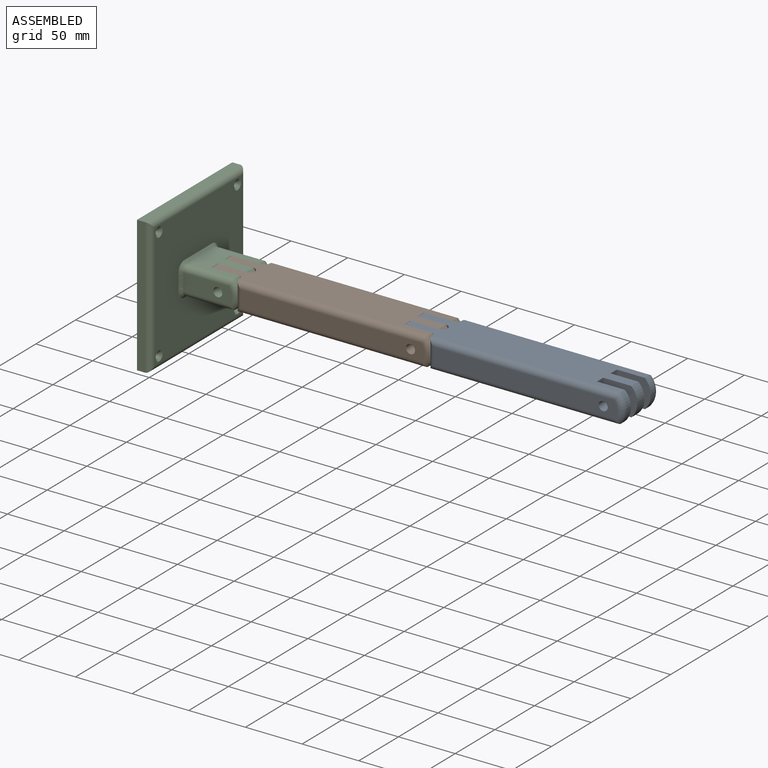
[diagram: assembled view]
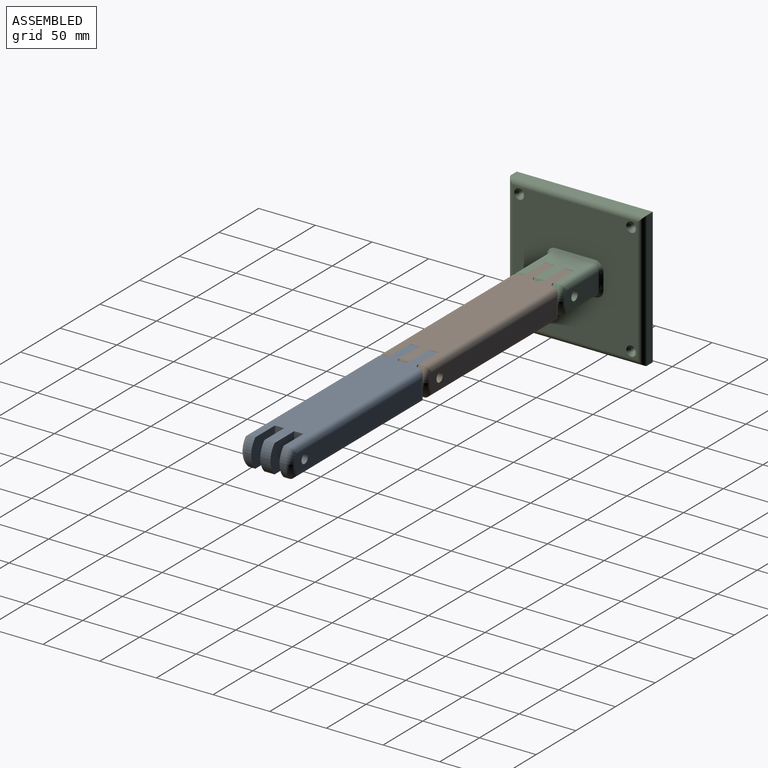
[diagram: assembled view, second angle]
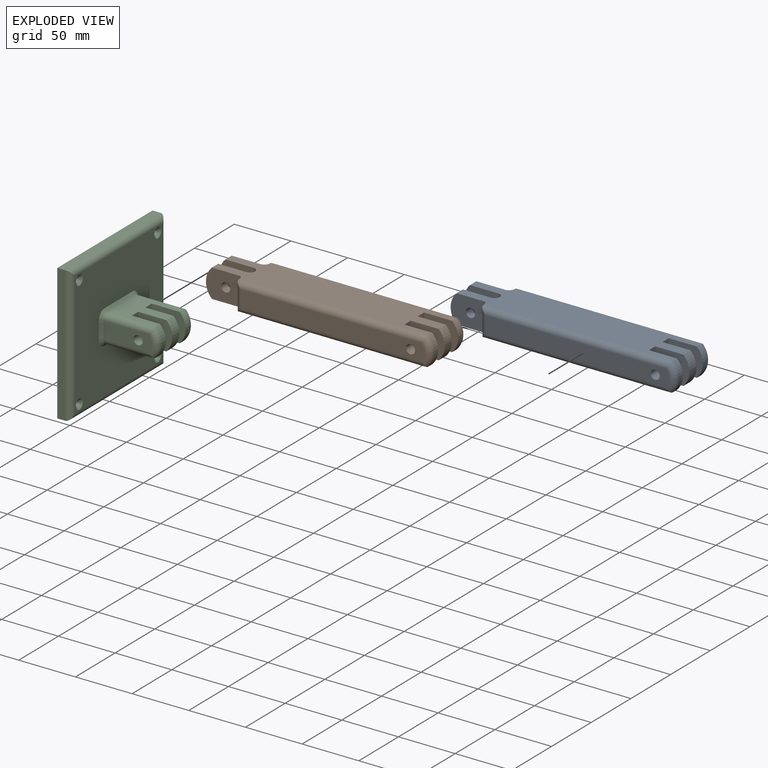
[diagram: exploded view]
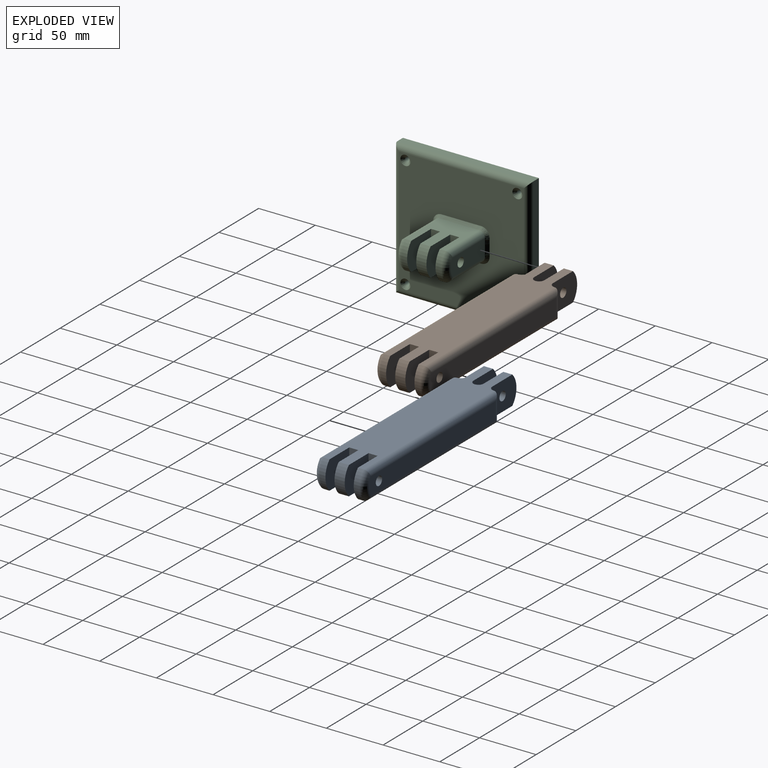
[diagram: exploded view, second angle]
ASSEMBLY  parts=3 mates=2
PART A: 35 faces, bbox 206.4x45x27.1 mm
  f0: plane 159.55x15mm, normal (0,1,0), area 2331.1mm2, adj f1,f31,f32,f33,f34
  f1: cylinder r=4mm len=9.98mm, axis (0,1,0), area 250.8mm2, adj f0,f7
  f2: cylinder r=17.5mm len=25mm, axis (0,1,0), area 138.7mm2, adj f7,f11,f12,f32
  f3: plane 30x25mm, normal (0,-1,0), area 659mm2, adj f11,f12,f13,f23,f25
  f4: plane 30x25mm, normal (0,1,0), area 659mm2, adj f11,f12,f16,f23,f25
  f5: plane 30x25mm, normal (0,-1,0), area 659mm2, adj f11,f12,f16,f22,f26
  f6: plane 30x25mm, normal (0,1,0), area 659mm2, adj f11,f12,f17,f22,f26
  f7: plane 30x25mm, normal (0,-1,0), area 659mm2, adj f1,f2,f11,f12,f14
  f8: plane 30x25mm, normal (0,1,0), area 659mm2, adj f11,f12,f14,f21,f24
  f9: plane 30x25mm, normal (0,-1,0), area 659mm2, adj f11,f12,f15,f21,f24
  f10: plane 30x25mm, normal (0,1,0), area 659mm2, adj f11,f12,f15,f19,f20
  f11: plane 194.5x35mm, normal (0,0,1), area 5878.1mm2, adj f2,f3,f4,f5,f6,f7,f8,f9
  f12: plane 194.5x35mm, normal (0,0,-1), area 5878.1mm2, adj f2,f3,f4,f5,f6,f7,f8,f9
  f13: cylinder r=6mm len=25mm, axis (0,0,-1), area 148.4mm2, adj f3,f11,f12,f29
  f14: plane 25x8mm, normal (1,0,0), area 200mm2, adj f7,f8,f11,f12
  f15: plane 25x8.02mm, normal (1,0,0), area 200.5mm2, adj f9,f10,f11,f12
  f16: cylinder r=4.49mm len=25mm, axis (0,0,-1), area 352.6mm2, adj f4,f5,f11,f12
  f17: cylinder r=5mm len=25mm, axis (0,0,-1), area 207.5mm2, adj f6,f11,f12,f33
  f18: plane 162.3x15mm, normal (0,-1,0), area 2372.3mm2, adj f19,f27,f28,f29,f30
  f19: cylinder r=4mm len=10.02mm, axis (0,1,0), area 251.8mm2, adj f10,f18
  f20: cylinder r=17.5mm len=25mm, axis (0,1,0), area 139.8mm2, adj f10,f11,f12,f28
  f21: cylinder r=4mm len=8.98mm, axis (0,1,0), area 225.7mm2, adj f8,f9
  f22: cylinder r=4mm len=8mm, axis (0,1,0), area 201.1mm2, adj f5,f6
  f23: cylinder r=4mm len=8.02mm, axis (0,1,0), area 201.6mm2, adj f3,f4
  f24: cylinder r=17.5mm len=25mm, axis (0,1,0), area 250.1mm2, adj f8,f9,f11,f12
  f25: cylinder r=17.5mm len=25mm, axis (0,1,0), area 223.3mm2, adj f3,f4,f11,f12
  f26: cylinder r=17.5mm len=25mm, axis (0,1,0), area 222.8mm2, adj f5,f6,f11,f12
  f27: cylinder r=5mm len=167.05mm, axis (1,0,0), area 1291.6mm2, adj f12,f18,f28,f29
  f28: torus R=12.5mm, axis (0,-1,0), area 184.8mm2, adj f18,f20,f27,f30
  f29: cylinder r=5mm len=25mm, axis (0,0,-1), area 167.9mm2, adj f11,f12,f13,f18,f27,f30
  f30: cylinder r=5mm len=167.05mm, axis (-1,0,0), area 1291.6mm2, adj f11,f18,f28,f29
  f31: cylinder r=5mm len=164.3mm, axis (-1,0,0), area 1270mm2, adj f0,f12,f32,f33
  f32: torus R=12.5mm, axis (0,-1,0), area 184.8mm2, adj f0,f2,f31,f34
  f33: cylinder r=5mm len=25mm, axis (0,0,-1), area 167.8mm2, adj f0,f17,f31,f34
  f34: cylinder r=5mm len=164.3mm, axis (1,0,0), area 1270mm2, adj f0,f11,f32,f33
PART B: same geometry as A
PART C: 48 faces, bbox 64x120x120 mm
  f0: plane 43x15mm, normal (0,1,0), area 582.8mm2, adj f1,f19,f20,f21,f37
  f1: cylinder r=4mm len=9.98mm, axis (0,1,0), area 250.8mm2, adj f0,f6
  f2: cylinder r=17.5mm len=25mm, axis (0,1,0), area 138.7mm2, adj f6,f10,f11,f20
  f3: plane 43x15mm, normal (0,-1,0), area 582.8mm2, adj f4,f16,f17,f18,f42
  f4: cylinder r=4mm len=10.02mm, axis (0,1,0), area 251.8mm2, adj f3,f9
  f5: cylinder r=17.5mm len=25mm, axis (0,1,0), area 139.8mm2, adj f9,f10,f11,f17
  f6: plane 30x25mm, normal (0,-1,0), area 659mm2, adj f1,f2,f10,f11,f12
  f7: plane 30x25mm, normal (0,1,0), area 659mm2, adj f10,f11,f12,f14,f15
  f8: plane 30x25mm, normal (0,-1,0), area 659mm2, adj f10,f11,f13,f14,f15
  f9: plane 30x25mm, normal (0,1,0), area 659mm2, adj f4,f5,f10,f11,f13
  f10: plane 42.75x35mm, normal (0,0,1), area 1099.7mm2, adj f2,f5,f6,f7,f8,f9,f12,f13
  f11: plane 42.75x35mm, normal (0,0,-1), area 1099.7mm2, adj f2,f5,f6,f7,f8,f9,f12,f13
  f12: plane 25x8mm, normal (1,0,0), area 200mm2, adj f6,f7,f10,f11
  f13: plane 25x8.02mm, normal (1,0,0), area 200.5mm2, adj f8,f9,f10,f11
  f14: cylinder r=4mm len=8.98mm, axis (0,1,0), area 225.7mm2, adj f7,f8
  f15: cylinder r=17.5mm len=25mm, axis (0,1,0), area 250.1mm2, adj f7,f8,f10,f11
  f16: cylinder r=5mm len=42.75mm, axis (1,0,0), area 326.9mm2, adj f3,f11,f17,f43
  f17: torus R=12.5mm, axis (0,-1,0), area 178.3mm2, adj f3,f5,f16,f18
  f18: cylinder r=5mm len=42.75mm, axis (-1,0,0), area 326.9mm2, adj f3,f10,f17,f40
  f19: cylinder r=5mm len=42.75mm, axis (-1,0,0), area 326.9mm2, adj f0,f11,f20,f39
  f20: torus R=12.5mm, axis (0,-1,0), area 178.3mm2, adj f0,f2,f19,f21
  f21: cylinder r=5mm len=42.75mm, axis (1,0,0), area 326.9mm2, adj f0,f10,f20,f36
  f22: plane 120x7mm, normal (0,0,1), area 840mm2, adj f23,f29,f31,f32
  f23: plane 120x7mm, normal (0,-1,0), area 840mm2, adj f22,f24,f31,f33
  f24: plane 120x7mm, normal (0,0,-1), area 840mm2, adj f23,f29,f31,f35
  f25: cylinder r=2mm len=9.5mm, axis (-1,0,0), area 119.4mm2, adj f31,f47
  f26: cylinder r=2mm len=9.5mm, axis (-1,0,0), area 119.4mm2, adj f31,f46
  f27: cylinder r=2mm len=9.5mm, axis (-1,0,0), area 119.4mm2, adj f31,f45
  f28: cylinder r=2mm len=9.5mm, axis (-1,0,0), area 119.4mm2, adj f31,f44
  f29: plane 120x7mm, normal (0,1,0), area 840mm2, adj f22,f24,f31,f34
  f30: plane 110.02x110.02mm, normal (1,0,0), area 10394mm2, adj f32,f33,f34,f35,f36,f37,f38,f39
  f31: plane 120x120mm, normal (-1,0,0), area 14349.7mm2, adj f22,f23,f24,f25,f26,f27,f28,f29
  f32: cylinder r=5mm len=120mm, axis (0,1,0), area 903.2mm2, adj f22,f30,f33,f34
  f33: cylinder r=5mm len=120mm, axis (0,0,1), area 903.2mm2, adj f23,f30,f32,f35
  f34: cylinder r=5mm len=120mm, axis (0,0,-1), area 903.2mm2, adj f29,f30,f32,f35
  f35: cylinder r=5mm len=120mm, axis (0,-1,0), area 903.2mm2, adj f24,f30,f33,f34
  f36: bspline ~7.5x7.5mm, area 34.5mm2, adj f21,f30,f37,f38
  f37: bspline ~15x2.5mm, area 53.6mm2, adj f0,f30,f36,f39
  f38: bspline ~35x2.5mm, area 125.1mm2, adj f10,f30,f36,f40
  f39: bspline ~7.5x7.5mm, area 34.5mm2, adj f19,f30,f37,f41
  f40: bspline ~7.5x7.5mm, area 34.5mm2, adj f18,f30,f38,f42
  f41: bspline ~35x2.5mm, area 125.1mm2, adj f11,f30,f39,f43
  f42: bspline ~15x2.5mm, area 53.6mm2, adj f3,f30,f40,f43
  f43: bspline ~7.5x7.5mm, area 34.5mm2, adj f16,f30,f41,f42
  f44: bspline ~9x9mm, area 70.8mm2, adj f28,f30
  f45: bspline ~9x9mm, area 70.8mm2, adj f27,f30
  f46: bspline ~9x9mm, area 70.8mm2, adj f26,f30
  f47: bspline ~9x9mm, area 70.8mm2, adj f25,f30
PLACE A t=(-420.7,75.36,-186.19)mm
PLACE B t=(-590.7,75.36,-186.19)mm
PLACE C t=(-635.7,75.36,-186.19)mm
MATE revolute B.f22 <-> C.f1  axis (0,1,0) through (-590.7,65.38,-186.19)mm
MATE revolute A.f22 <-> B.f1  axis (0,1,0) through (-420.7,65.38,-186.19)mm
